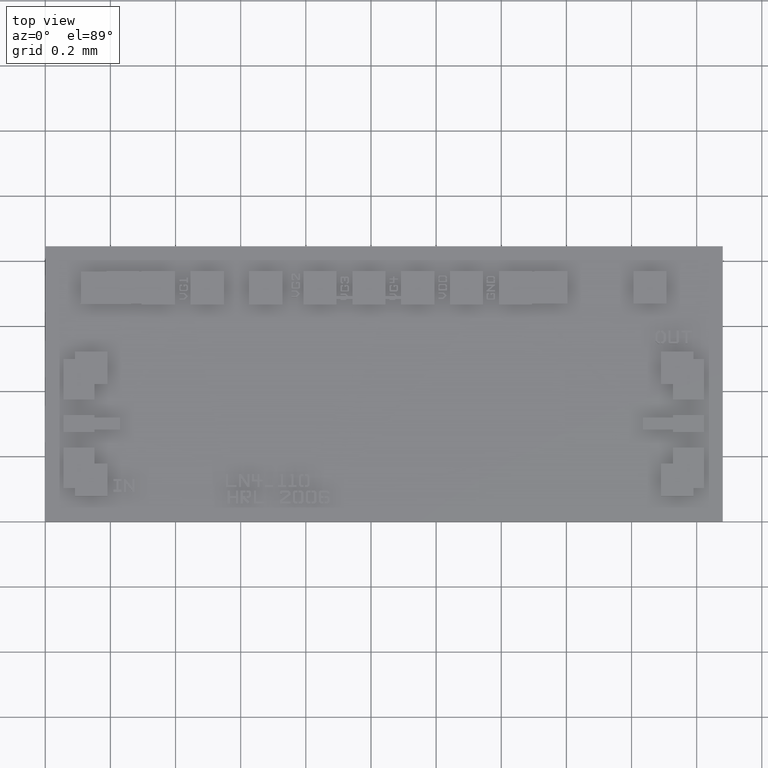
[diagram: clean part render]
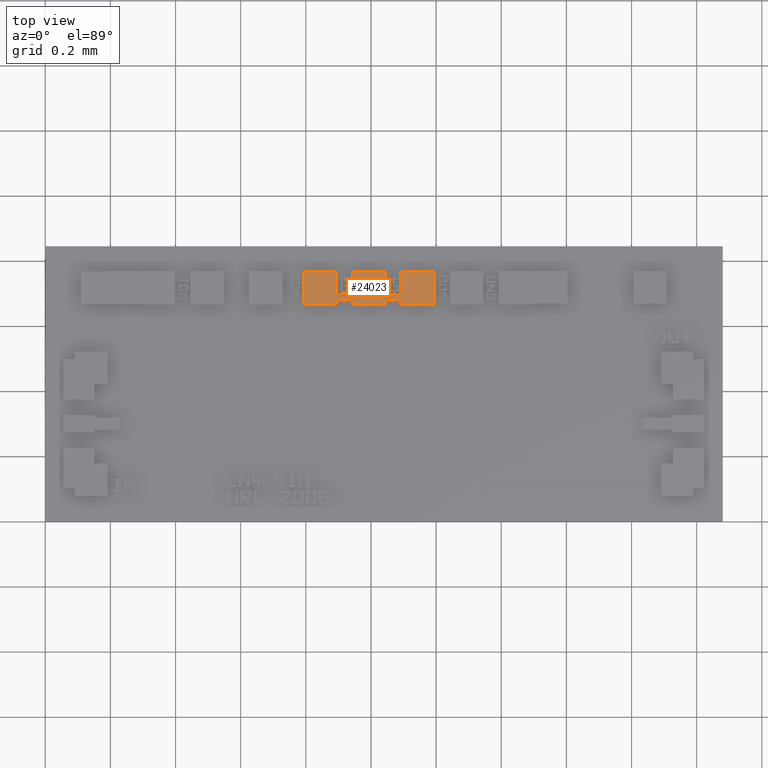
[diagram: same view with one face highlighted and labeled with its STEP entity id]
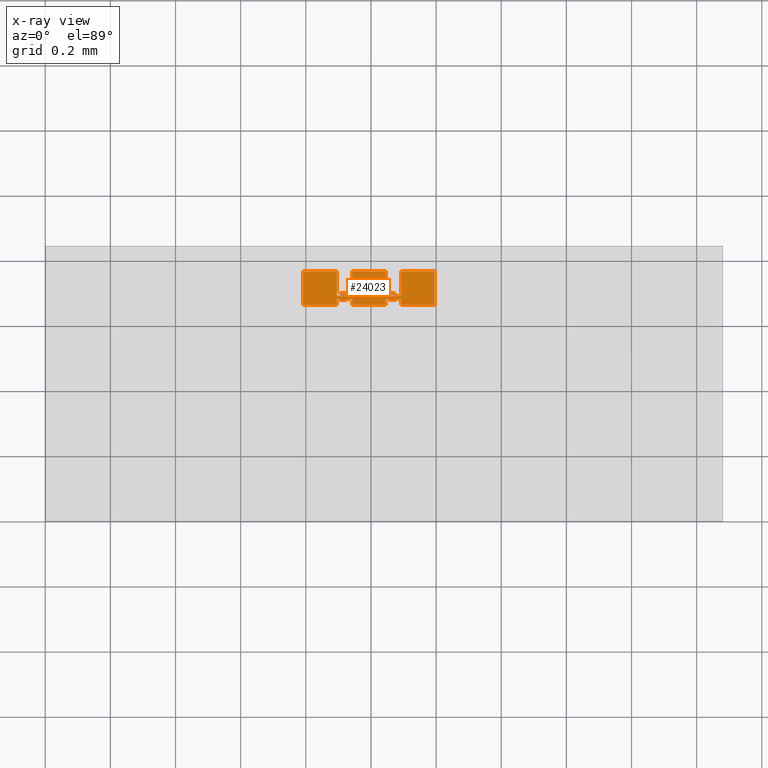
[diagram: x-ray of the same camera — body ghosted, the highlighted face saturated]
A machine part, top view. The second image highlights one B-rep face of the part: STEP entity #24023.
The next image is the same camera in x-ray: the body ghosted, the highlighted face saturated — about 0% of this face is hidden behind the body in this view.
In plain terms, the highlighted planar face has unit normal (0, 0, 1).
Its self-contained STEP definition (entity closure, byte-faithful):
#89=CARTESIAN_POINT('',(0.042208661417323,0.026744094488189,0.001889763779528));
#90=VERTEX_POINT('',#89);
#97=CARTESIAN_POINT('',(0.041594488188976,0.026744094488189,0.001889763779528));
#98=VERTEX_POINT('',#97);
#99=CARTESIAN_POINT('',(0.041594488188976,0.026744094488189,0.001889763779528));
#100=DIRECTION('',(1.0,0.0,0.0));
#101=VECTOR('',#100,0.000614173228346);
#102=LINE('',#99,#101);
#103=EDGE_CURVE('',#98,#90,#102,.T.);
#127=CARTESIAN_POINT('',(0.042314960629921,0.026850393700787,0.001889763779528));
#128=VERTEX_POINT('',#127);
#135=CARTESIAN_POINT('',(0.042208661417323,0.026744094488189,0.001889763779528));
#136=DIRECTION('',(0.707106781186559,0.707106781186536,0.0));
#137=VECTOR('',#136,0.000150329788126);
#138=LINE('',#135,#137);
#139=EDGE_CURVE('',#90,#128,#138,.T.);
#158=CARTESIAN_POINT('',(0.043011811023622,0.026850393700787,0.001889763779528));
#159=VERTEX_POINT('',#158);
#166=CARTESIAN_POINT('',(0.042314960629921,0.026850393700787,0.001889763779528));
#167=DIRECTION('',(1.0,0.0,0.0));
#168=VECTOR('',#167,0.000696850393701);
#169=LINE('',#166,#168);
#170=EDGE_CURVE('',#128,#159,#169,.T.);
#189=CARTESIAN_POINT('',(0.043011811023622,0.026220472440945,0.001889763779528));
#190=VERTEX_POINT('',#189);
#197=CARTESIAN_POINT('',(0.043011811023622,0.026850393700787,0.001889763779528));
#198=DIRECTION('',(0.0,-1.0,0.0));
#199=VECTOR('',#198,0.000629921259843);
#200=LINE('',#197,#199);
#201=EDGE_CURVE('',#159,#190,#200,.T.);
#220=CARTESIAN_POINT('',(0.047027559055118,0.026220472440945,0.001889763779528));
#221=VERTEX_POINT('',#220);
#228=CARTESIAN_POINT('',(0.043011811023622,0.026220472440945,0.001889763779528));
#229=DIRECTION('',(1.0,0.0,0.0));
#230=VECTOR('',#229,0.004015748031496);
#231=LINE('',#228,#230);
#232=EDGE_CURVE('',#190,#221,#231,.T.);
#251=CARTESIAN_POINT('',(0.047027559055118,0.030236220472441,0.001889763779528));
#252=VERTEX_POINT('',#251);
#259=CARTESIAN_POINT('',(0.047027559055118,0.026220472440945,0.001889763779528));
#260=DIRECTION('',(0.0,1.0,0.0));
#261=VECTOR('',#260,0.004015748031496);
#262=LINE('',#259,#261);
#263=EDGE_CURVE('',#221,#252,#262,.T.);
#282=CARTESIAN_POINT('',(0.043011811023622,0.030236220472441,0.001889763779528));
#283=VERTEX_POINT('',#282);
#290=CARTESIAN_POINT('',(0.047027559055118,0.030236220472441,0.001889763779528));
#291=DIRECTION('',(-1.0,0.0,0.0));
#292=VECTOR('',#291,0.004015748031496);
#293=LINE('',#290,#292);
#294=EDGE_CURVE('',#252,#283,#293,.T.);
#313=CARTESIAN_POINT('',(0.043011811023622,0.027244094488189,0.001889763779528));
#314=VERTEX_POINT('',#313);
#321=CARTESIAN_POINT('',(0.043011811023622,0.030236220472441,0.001889763779528));
#322=DIRECTION('',(0.0,-1.0,0.0));
#323=VECTOR('',#322,0.002992125984252);
#324=LINE('',#321,#323);
#325=EDGE_CURVE('',#283,#314,#324,.T.);
#344=CARTESIAN_POINT('',(0.042527559055118,0.027244094488189,0.001889763779528));
#345=VERTEX_POINT('',#344);
#352=CARTESIAN_POINT('',(0.043011811023622,0.027244094488189,0.001889763779528));
#353=DIRECTION('',(-1.0,0.0,0.0));
#354=VECTOR('',#353,0.000484251968504);
#355=LINE('',#352,#354);
#356=EDGE_CURVE('',#314,#345,#355,.T.);
#375=CARTESIAN_POINT('',(0.042208661417323,0.027562992125984,0.001889763779528));
#376=VERTEX_POINT('',#375);
#383=CARTESIAN_POINT('',(0.042527559055118,0.027244094488189,0.001889763779528));
#384=DIRECTION('',(-0.707106781186555,0.707106781186540,0.0));
#385=VECTOR('',#384,0.000450989364379);
#386=LINE('',#383,#385);
#387=EDGE_CURVE('',#345,#376,#386,.T.);
#406=CARTESIAN_POINT('',(0.041594488188976,0.027562992125984,0.001889763779528));
#407=VERTEX_POINT('',#406);
#414=CARTESIAN_POINT('',(0.042208661417323,0.027562992125984,0.001889763779528));
#415=DIRECTION('',(-1.0,0.0,0.0));
#416=VECTOR('',#415,0.000614173228346);
#417=LINE('',#414,#416);
#418=EDGE_CURVE('',#376,#407,#417,.T.);
#437=CARTESIAN_POINT('',(0.041594488188976,0.027399212598425,0.001889763779528));
#438=VERTEX_POINT('',#437);
#445=CARTESIAN_POINT('',(0.041594488188976,0.027562992125984,0.001889763779528));
#446=DIRECTION('',(0.0,-1.0,0.0));
#447=VECTOR('',#446,0.000163779527559);
#448=LINE('',#445,#447);
#449=EDGE_CURVE('',#407,#438,#448,.T.);
#468=CARTESIAN_POINT('',(0.042126771653543,0.027399212598425,0.001889763779528));
#469=VERTEX_POINT('',#468);
#476=CARTESIAN_POINT('',(0.041594488188976,0.027399212598425,0.001889763779528));
#477=DIRECTION('',(1.0,0.0,0.0));
#478=VECTOR('',#477,0.000532283464567);
#479=LINE('',#476,#478);
#480=EDGE_CURVE('',#438,#469,#479,.T.);
#499=CARTESIAN_POINT('',(0.042281889763780,0.027244094488189,0.001889763779528));
#500=VERTEX_POINT('',#499);
#507=CARTESIAN_POINT('',(0.042126771653543,0.027399212598425,0.001889763779528));
#508=DIRECTION('',(0.707106781186555,-0.707106781186540,0.0));
#509=VECTOR('',#508,0.000219370135266);
#510=LINE('',#507,#509);
#511=EDGE_CURVE('',#469,#500,#510,.T.);
#530=CARTESIAN_POINT('',(0.041122047244094,0.027244094488189,0.001889763779528));
#531=VERTEX_POINT('',#530);
#538=CARTESIAN_POINT('',(0.042281889763780,0.027244094488189,0.001889763779528));
#539=DIRECTION('',(-1.0,0.0,0.0));
#540=VECTOR('',#539,0.001159842519685);
#541=LINE('',#538,#540);
#542=EDGE_CURVE('',#500,#531,#541,.T.);
#561=CARTESIAN_POINT('',(0.041122047244094,0.030236220472441,0.001889763779528));
#562=VERTEX_POINT('',#561);
#569=CARTESIAN_POINT('',(0.041122047244094,0.027244094488189,0.001889763779528));
#570=DIRECTION('',(0.0,1.0,0.0));
#571=VECTOR('',#570,0.002992125984252);
#572=LINE('',#569,#571);
#573=EDGE_CURVE('',#531,#562,#572,.T.);
#592=CARTESIAN_POINT('',(0.037106299212598,0.030236220472441,0.001889763779528));
#593=VERTEX_POINT('',#592);
#600=CARTESIAN_POINT('',(0.041122047244094,0.030236220472441,0.001889763779528));
#601=DIRECTION('',(-1.0,0.0,0.0));
#602=VECTOR('',#601,0.004015748031496);
#603=LINE('',#600,#602);
#604=EDGE_CURVE('',#562,#593,#603,.T.);
#623=CARTESIAN_POINT('',(0.037106299212598,0.027244094488189,0.001889763779528));
#624=VERTEX_POINT('',#623);
#631=CARTESIAN_POINT('',(0.037106299212598,0.030236220472441,0.001889763779528));
#632=DIRECTION('',(0.0,-1.0,0.0));
#633=VECTOR('',#632,0.002992125984252);
#634=LINE('',#631,#633);
#635=EDGE_CURVE('',#593,#624,#634,.T.);
#654=CARTESIAN_POINT('',(0.036582677165354,0.027244094488189,0.001889763779528));
#655=VERTEX_POINT('',#654);
#662=CARTESIAN_POINT('',(0.037106299212598,0.027244094488189,0.001889763779528));
#663=DIRECTION('',(-1.0,0.0,0.0));
#664=VECTOR('',#663,0.000523622047244);
#665=LINE('',#662,#664);
#666=EDGE_CURVE('',#624,#655,#665,.T.);
#685=CARTESIAN_POINT('',(0.036283464566929,0.027543307086614,0.001889763779528));
#686=VERTEX_POINT('',#685);
#693=CARTESIAN_POINT('',(0.036582677165354,0.027244094488189,0.001889763779528));
#694=DIRECTION('',(-0.707106781186552,0.707106781186543,0.0));
#695=VECTOR('',#694,0.000423150514726);
#696=LINE('',#693,#695);
#697=EDGE_CURVE('',#655,#686,#696,.T.);
#716=CARTESIAN_POINT('',(0.035669291338583,0.027543307086614,0.001889763779528));
#717=VERTEX_POINT('',#716);
#724=CARTESIAN_POINT('',(0.036283464566929,0.027543307086614,0.001889763779528));
#725=DIRECTION('',(-1.0,0.0,0.0));
#726=VECTOR('',#725,0.000614173228346);
#727=LINE('',#724,#726);
#728=EDGE_CURVE('',#686,#717,#727,.T.);
#747=CARTESIAN_POINT('',(0.035669291338583,0.027379527559055,0.001889763779528));
#748=VERTEX_POINT('',#747);
#755=CARTESIAN_POINT('',(0.035669291338583,0.027543307086614,0.001889763779528));
#756=DIRECTION('',(0.0,-1.0,0.0));
#757=VECTOR('',#756,0.000163779527559);
#758=LINE('',#755,#757);
#759=EDGE_CURVE('',#717,#748,#758,.T.);
#778=CARTESIAN_POINT('',(0.036201574803150,0.027379527559055,0.001889763779528));
#779=VERTEX_POINT('',#778);
#786=CARTESIAN_POINT('',(0.035669291338583,0.027379527559055,0.001889763779528));
#787=DIRECTION('',(1.0,0.0,0.0));
#788=VECTOR('',#787,0.000532283464567);
#789=LINE('',#786,#788);
#790=EDGE_CURVE('',#748,#779,#789,.T.);
#809=CARTESIAN_POINT('',(0.036337007874016,0.027244094488189,0.001889763779528));
#810=VERTEX_POINT('',#809);
#817=CARTESIAN_POINT('',(0.036201574803150,0.027379527559055,0.001889763779528));
#818=DIRECTION('',(0.707106781186538,-0.707106781186557,0.0));
#819=VECTOR('',#818,0.000191531285613);
#820=LINE('',#817,#819);
#821=EDGE_CURVE('',#779,#810,#820,.T.);
#840=CARTESIAN_POINT('',(0.035216535433071,0.027244094488189,0.001889763779528));
#841=VERTEX_POINT('',#840);
#848=CARTESIAN_POINT('',(0.036337007874016,0.027244094488189,0.001889763779528));
#849=DIRECTION('',(-1.0,0.0,0.0));
#850=VECTOR('',#849,0.001120472440945);
#851=LINE('',#848,#850);
#852=EDGE_CURVE('',#810,#841,#851,.T.);
#871=CARTESIAN_POINT('',(0.035216535433071,0.030236220472441,0.001889763779528));
#872=VERTEX_POINT('',#871);
#879=CARTESIAN_POINT('',(0.035216535433071,0.027244094488189,0.001889763779528));
#880=DIRECTION('',(0.0,1.0,0.0));
#881=VECTOR('',#880,0.002992125984252);
#882=LINE('',#879,#881);
#883=EDGE_CURVE('',#841,#872,#882,.T.);
#902=CARTESIAN_POINT('',(0.031200787401575,0.030236220472441,0.001889763779528));
#903=VERTEX_POINT('',#902);
#910=CARTESIAN_POINT('',(0.035216535433071,0.030236220472441,0.001889763779528));
#911=DIRECTION('',(-1.0,0.0,0.0));
#912=VECTOR('',#911,0.004015748031496);
#913=LINE('',#910,#912);
#914=EDGE_CURVE('',#872,#903,#913,.T.);
#933=CARTESIAN_POINT('',(0.031200787401575,0.026220472440945,0.001889763779528));
#934=VERTEX_POINT('',#933);
#941=CARTESIAN_POINT('',(0.031200787401575,0.030236220472441,0.001889763779528));
#942=DIRECTION('',(0.0,-1.0,0.0));
#943=VECTOR('',#942,0.004015748031496);
#944=LINE('',#941,#943);
#945=EDGE_CURVE('',#903,#934,#944,.T.);
#964=CARTESIAN_POINT('',(0.035216535433071,0.026220472440945,0.001889763779528));
#965=VERTEX_POINT('',#964);
#972=CARTESIAN_POINT('',(0.031200787401575,0.026220472440945,0.001889763779528));
#973=DIRECTION('',(1.0,0.0,0.0));
#974=VECTOR('',#973,0.004015748031496);
#975=LINE('',#972,#974);
#976=EDGE_CURVE('',#934,#965,#975,.T.);
#995=CARTESIAN_POINT('',(0.035216535433071,0.026850393700787,0.001889763779528));
#996=VERTEX_POINT('',#995);
#1003=CARTESIAN_POINT('',(0.035216535433071,0.026220472440945,0.001889763779528));
#1004=DIRECTION('',(0.0,1.0,0.0));
#1005=VECTOR('',#1004,0.000629921259843);
#1006=LINE('',#1003,#1005);
#1007=EDGE_CURVE('',#965,#996,#1006,.T.);
#1026=CARTESIAN_POINT('',(0.035669291338583,0.026850393700787,0.001889763779528));
#1027=VERTEX_POINT('',#1026);
#1034=CARTESIAN_POINT('',(0.035216535433071,0.026850393700787,0.001889763779528));
#1035=DIRECTION('',(1.0,0.0,0.0));
#1036=VECTOR('',#1035,0.000452755905512);
#1037=LINE('',#1034,#1036);
#1038=EDGE_CURVE('',#996,#1027,#1037,.T.);
#1057=CARTESIAN_POINT('',(0.035669291338583,0.026724409448819,0.001889763779528));
#1058=VERTEX_POINT('',#1057);
#1065=CARTESIAN_POINT('',(0.035669291338583,0.026850393700787,0.001889763779528));
#1066=DIRECTION('',(0.0,-1.0,0.0));
#1067=VECTOR('',#1066,0.000125984251969);
#1068=LINE('',#1065,#1067);
#1069=EDGE_CURVE('',#1027,#1058,#1068,.T.);
#1088=CARTESIAN_POINT('',(0.036283464566929,0.026724409448819,0.001889763779528));
#1089=VERTEX_POINT('',#1088);
#1096=CARTESIAN_POINT('',(0.035669291338583,0.026724409448819,0.001889763779528));
#1097=DIRECTION('',(1.0,0.0,0.0));
#1098=VECTOR('',#1097,0.000614173228346);
#1099=LINE('',#1096,#1098);
#1100=EDGE_CURVE('',#1058,#1089,#1099,.T.);
#1119=CARTESIAN_POINT('',(0.036409448818898,0.026850393700787,0.001889763779528));
#1120=VERTEX_POINT('',#1119);
#1127=CARTESIAN_POINT('',(0.036283464566929,0.026724409448819,0.001889763779528));
#1128=DIRECTION('',(0.707106781186538,0.707106781186557,0.0));
#1129=VECTOR('',#1128,0.000178168637779);
#1130=LINE('',#1127,#1129);
#1131=EDGE_CURVE('',#1089,#1120,#1130,.T.);
#1150=CARTESIAN_POINT('',(0.037106299212598,0.026850393700787,0.001889763779528));
#1151=VERTEX_POINT('',#1150);
#1158=CARTESIAN_POINT('',(0.036409448818898,0.026850393700787,0.001889763779528));
#1159=DIRECTION('',(1.0,0.0,0.0));
#1160=VECTOR('',#1159,0.000696850393701);
#1161=LINE('',#1158,#1160);
#1162=EDGE_CURVE('',#1120,#1151,#1161,.T.);
#1181=CARTESIAN_POINT('',(0.037106299212598,0.026220472440945,0.001889763779528));
#1182=VERTEX_POINT('',#1181);
#1189=CARTESIAN_POINT('',(0.037106299212598,0.026850393700787,0.001889763779528));
#1190=DIRECTION('',(0.0,-1.0,0.0));
#1191=VECTOR('',#1190,0.000629921259843);
#1192=LINE('',#1189,#1191);
#1193=EDGE_CURVE('',#1151,#1182,#1192,.T.);
#1212=CARTESIAN_POINT('',(0.041122047244094,0.026220472440945,0.001889763779528));
#1213=VERTEX_POINT('',#1212);
#1220=CARTESIAN_POINT('',(0.037106299212598,0.026220472440945,0.001889763779528));
#1221=DIRECTION('',(1.0,0.0,0.0));
#1222=VECTOR('',#1221,0.004015748031496);
#1223=LINE('',#1220,#1222);
#1224=EDGE_CURVE('',#1182,#1213,#1223,.T.);
#1243=CARTESIAN_POINT('',(0.041122047244094,0.026850393700787,0.001889763779528));
#1244=VERTEX_POINT('',#1243);
#1251=CARTESIAN_POINT('',(0.041122047244094,0.026220472440945,0.001889763779528));
#1252=DIRECTION('',(0.0,1.0,0.0));
#1253=VECTOR('',#1252,0.000629921259843);
#1254=LINE('',#1251,#1253);
#1255=EDGE_CURVE('',#1213,#1244,#1254,.T.);
#1274=CARTESIAN_POINT('',(0.041594488188976,0.026850393700787,0.001889763779528));
#1275=VERTEX_POINT('',#1274);
#1282=CARTESIAN_POINT('',(0.041122047244094,0.026850393700787,0.001889763779528));
#1283=DIRECTION('',(1.0,0.0,0.0));
#1284=VECTOR('',#1283,0.000472440944882);
#1285=LINE('',#1282,#1284);
#1286=EDGE_CURVE('',#1244,#1275,#1285,.T.);
#1304=CARTESIAN_POINT('',(0.041594488188976,0.026850393700787,0.001889763779528));
#1305=DIRECTION('',(0.0,-1.0,0.0));
#1306=VECTOR('',#1305,0.000106299212598);
#1307=LINE('',#1304,#1306);
#1308=EDGE_CURVE('',#1275,#98,#1307,.T.);
#23976=CARTESIAN_POINT('',(0.040944881889764,0.016633858267717,0.001889763779528));
#23977=DIRECTION('',(0.0,0.0,1.0));
#23978=DIRECTION('',(1.0,0.0,0.0));
#23979=AXIS2_PLACEMENT_3D('',#23976,#23977,#23978);
#23980=PLANE('',#23979);
#23981=ORIENTED_EDGE('',*,*,#103,.T.);
#23982=ORIENTED_EDGE('',*,*,#139,.T.);
#23983=ORIENTED_EDGE('',*,*,#170,.T.);
#23984=ORIENTED_EDGE('',*,*,#201,.T.);
#23985=ORIENTED_EDGE('',*,*,#232,.T.);
#23986=ORIENTED_EDGE('',*,*,#263,.T.);
#23987=ORIENTED_EDGE('',*,*,#294,.T.);
#23988=ORIENTED_EDGE('',*,*,#325,.T.);
#23989=ORIENTED_EDGE('',*,*,#356,.T.);
#23990=ORIENTED_EDGE('',*,*,#387,.T.);
#23991=ORIENTED_EDGE('',*,*,#418,.T.);
#23992=ORIENTED_EDGE('',*,*,#449,.T.);
#23993=ORIENTED_EDGE('',*,*,#480,.T.);
#23994=ORIENTED_EDGE('',*,*,#511,.T.);
#23995=ORIENTED_EDGE('',*,*,#542,.T.);
#23996=ORIENTED_EDGE('',*,*,#573,.T.);
#23997=ORIENTED_EDGE('',*,*,#604,.T.);
#23998=ORIENTED_EDGE('',*,*,#635,.T.);
#23999=ORIENTED_EDGE('',*,*,#666,.T.);
#24000=ORIENTED_EDGE('',*,*,#697,.T.);
#24001=ORIENTED_EDGE('',*,*,#728,.T.);
#24002=ORIENTED_EDGE('',*,*,#759,.T.);
#24003=ORIENTED_EDGE('',*,*,#790,.T.);
#24004=ORIENTED_EDGE('',*,*,#821,.T.);
#24005=ORIENTED_EDGE('',*,*,#852,.T.);
#24006=ORIENTED_EDGE('',*,*,#883,.T.);
#24007=ORIENTED_EDGE('',*,*,#914,.T.);
#24008=ORIENTED_EDGE('',*,*,#945,.T.);
#24009=ORIENTED_EDGE('',*,*,#976,.T.);
#24010=ORIENTED_EDGE('',*,*,#1007,.T.);
#24011=ORIENTED_EDGE('',*,*,#1038,.T.);
#24012=ORIENTED_EDGE('',*,*,#1069,.T.);
#24013=ORIENTED_EDGE('',*,*,#1100,.T.);
#24014=ORIENTED_EDGE('',*,*,#1131,.T.);
#24015=ORIENTED_EDGE('',*,*,#1162,.T.);
#24016=ORIENTED_EDGE('',*,*,#1193,.T.);
#24017=ORIENTED_EDGE('',*,*,#1224,.T.);
#24018=ORIENTED_EDGE('',*,*,#1255,.T.);
#24019=ORIENTED_EDGE('',*,*,#1286,.T.);
#24020=ORIENTED_EDGE('',*,*,#1308,.T.);
#24021=EDGE_LOOP('',(#23981,#23982,#23983,#23984,#23985,#23986,#23987,#23988,#23989,#23990,#23991,#23992,#23993,#23994,#23995,#23996,#23997,#23998,#23999,#24000,#24001,#24002,#24003,#24004,#24005,#24006,#24007,#24008,#24009,#24010,#24011,#24012,#24013,#24014,#24015,#24016,#24017,#24018,#24019,#24020));
#24022=FACE_OUTER_BOUND('',#24021,.T.);
#24023=ADVANCED_FACE('',(#24022),#23980,.T.);